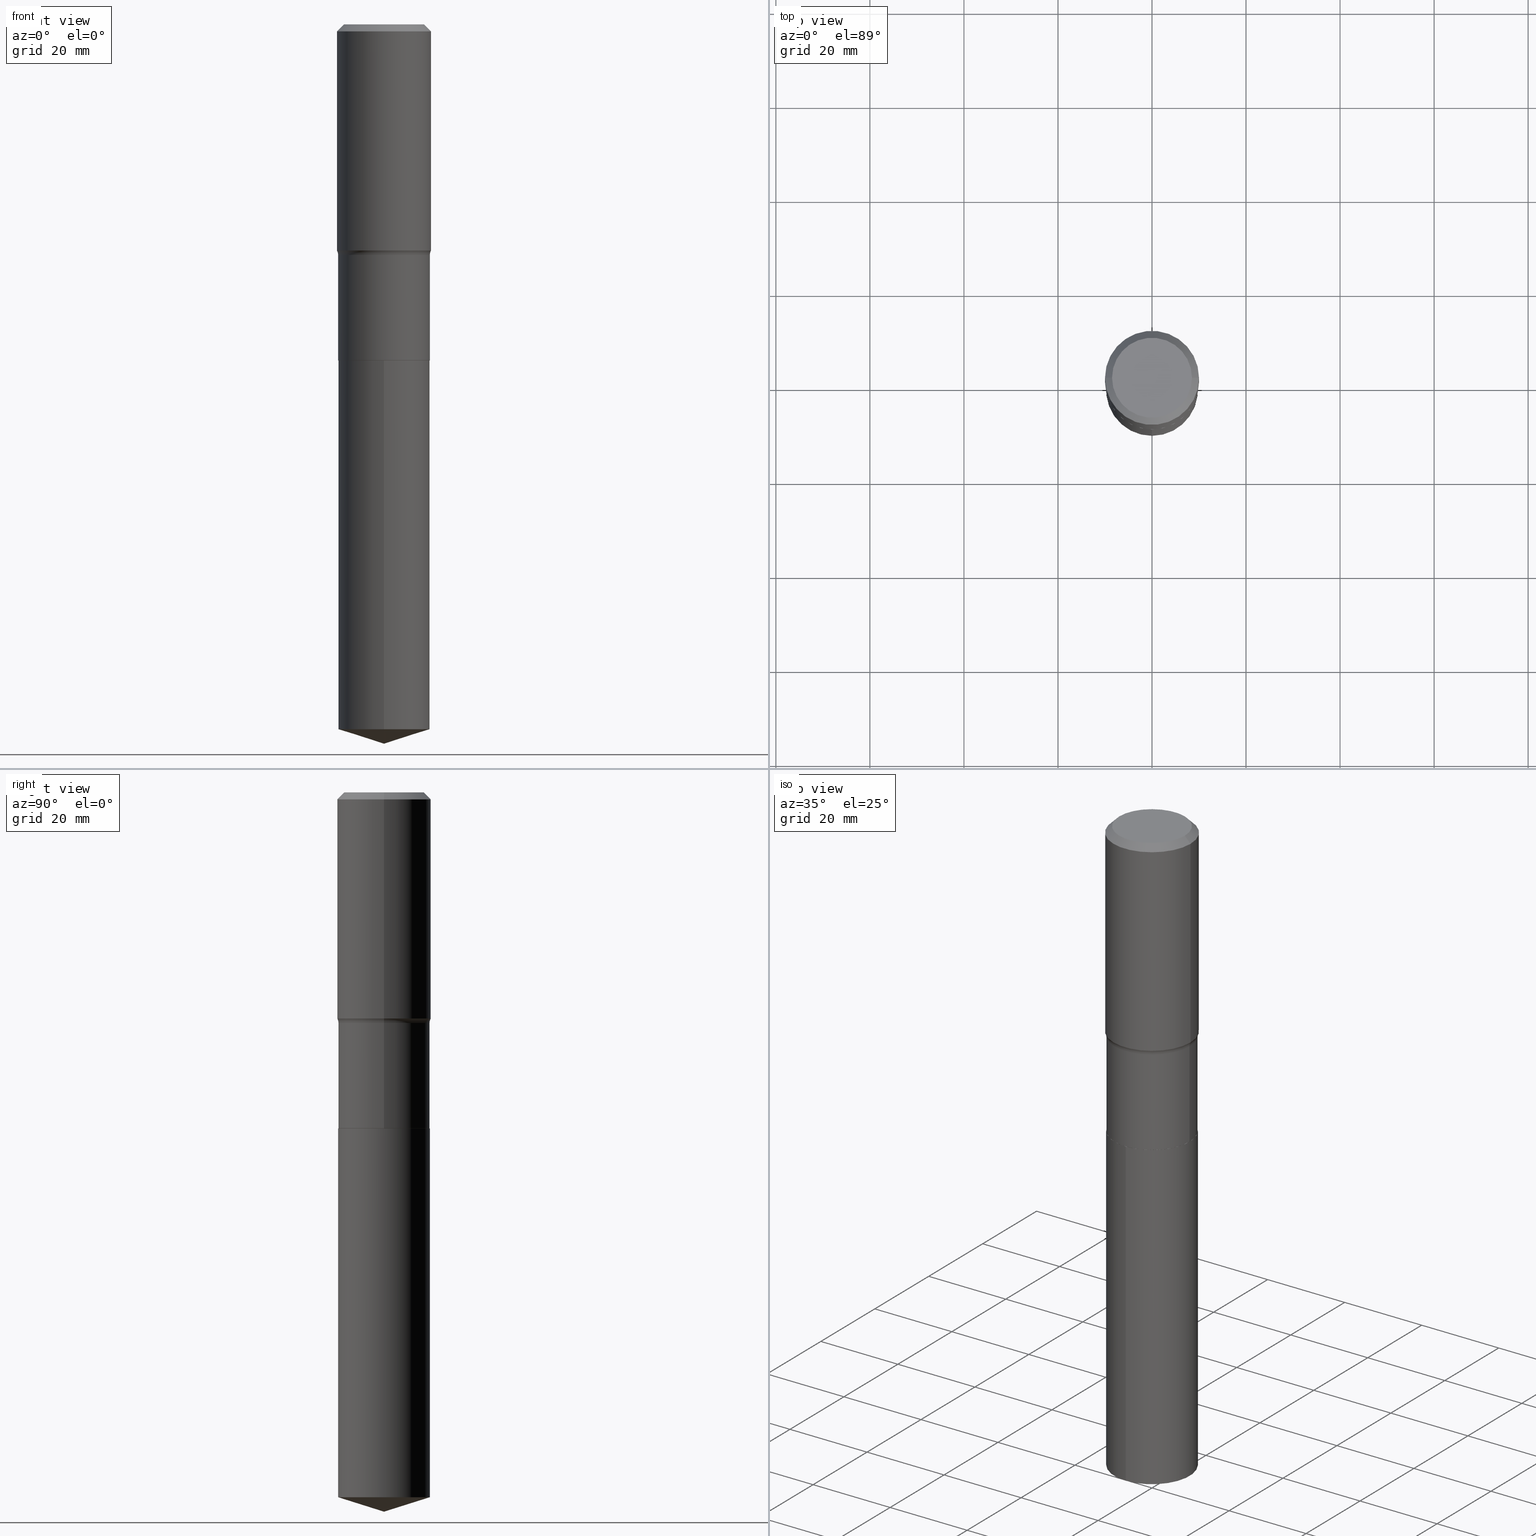
[diagram: canonical four-view strip — front | top / right | iso, engineering-drawing reading convention]
A machine part, canonical four-view strip (front | top / right | iso — engineering-drawing reading convention). The complete STEP part file that produces these views, byte-faithful:
ISO-10303-21;
HEADER;
FILE_DESCRIPTION (( 'STEP AP203' ),
    '1' );
FILE_NAME ('64211.STEP',
    '2024-04-19T15:38:18',
    ( '' ),
    ( '' ),
    'SwSTEP 2.0',
    'SolidWorks 2023',
    '' );
FILE_SCHEMA (( 'CONFIG_CONTROL_DESIGN' ));
ENDSEC;

DATA;
#1 = FACE_OUTER_BOUND ( 'NONE', #299, .T. ) ;
#2 = CALENDAR_DATE ( 2024, 19, 4 ) ;
#3 = CARTESIAN_POINT ( 'NONE',  ( 1.444171603492641897E-30, -2.061894304653833219E-16, -0.05905500000000039190 ) ) ;
#4 = DATE_TIME_ROLE ( 'creation_date' ) ;
#5 = CARTESIAN_POINT ( 'NONE',  ( 0.3838500000000000800, -1.250683530387001944E-14, -2.814399999999999569 ) ) ;
#6 = DATE_AND_TIME ( #342, #471 ) ;
#7 = CC_DESIGN_PERSON_AND_ORGANIZATION_ASSIGNMENT ( #189, #452, ( #318 ) ) ;
#8 = AXIS2_PLACEMENT_3D ( 'NONE', #335, #384, #424 ) ;
#9 = CONICAL_SURFACE ( 'NONE', #96, 0.3833500000000000241, 0.7853981633967653808 ) ;
#10 = ORIENTED_EDGE ( 'NONE', *, *, #165, .F. ) ;
#11 = CARTESIAN_POINT ( 'NONE',  ( 4.724645733549684143E-29, -6.745541946644958002E-15, -1.931999999999999940 ) ) ;
#12 = ADVANCED_FACE ( 'NONE', ( #277 ), #430, .T. ) ;
#13 = CARTESIAN_POINT ( 'NONE',  ( 0.4618499999999998717, -9.970623259334358080E-15, -1.931999999999999940 ) ) ;
#14 = APPROVAL_STATUS ( 'not_yet_approved' ) ;
#15 = ORIENTED_EDGE ( 'NONE', *, *, #304, .F. ) ;
#16 = CARTESIAN_POINT ( 'NONE',  ( 4.724645733549684143E-29, -6.745541946644958002E-15, -1.931999999999999940 ) ) ;
#17 = EDGE_CURVE ( 'NONE', #266, #156, #437, .T. ) ;
#18 = ORIENTED_EDGE ( 'NONE', *, *, #490, .T. ) ;
#19 = DIRECTION ( 'NONE',  ( 1.000000000000000000, -6.982962677686265922E-15, 4.876176775795935793E-29 ) ) ;
#20 = COORDINATED_UNIVERSAL_TIME_OFFSET ( 5, 0, .BEHIND. ) ;
#21 = ORIENTED_EDGE ( 'NONE', *, *, #447, .T. ) ;
#22 = PRODUCT ( '64211', '64211', '', ( #80 ) ) ;
#23 = EDGE_LOOP ( 'NONE', ( #460, #24 ) ) ;
#24 = ORIENTED_EDGE ( 'NONE', *, *, #274, .F. ) ;
#25 = CARTESIAN_POINT ( 'NONE',  ( 0.3937000000000000499, -2.907167492188035412E-15, -0.05905500000000039190 ) ) ;
#26 = PRODUCT_DEFINITION_FORMATION_WITH_SPECIFIED_SOURCE ( 'ANY', '', #22, .NOT_KNOWN. ) ;
#27 = VECTOR ( 'NONE', #434, 39.37007874015748143 ) ;
#28 = DIRECTION ( 'NONE',  ( -2.445120379997572774E-29, 3.491980304974924025E-15, 1.000000000000000000 ) ) ;
#29 = DIRECTION ( 'NONE',  ( -2.445120379997572774E-29, 3.491980304974924025E-15, 1.000000000000000000 ) ) ;
#30 = ADVANCED_FACE ( 'NONE', ( #246 ), #210, .T. ) ;
#31 = ORIENTED_EDGE ( 'NONE', *, *, #455, .F. ) ;
#32 = CARTESIAN_POINT ( 'NONE',  ( 6.883750142530539659E-29, -9.828170820709568122E-15, -2.814899999999999736 ) ) ;
#33 = DIRECTION ( 'NONE',  ( -2.445120379997572774E-29, 3.491980304974924025E-15, 1.000000000000000000 ) ) ;
#34 = AXIS2_PLACEMENT_3D ( 'NONE', #354, #245, #174 ) ;
#35 = CARTESIAN_POINT ( 'NONE',  ( 0.000000000000000000, 0.000000000000000000, 0.000000000000000000 ) ) ;
#36 = DIRECTION ( 'NONE',  ( 1.000000000000000000, -6.982962677686266711E-15, 0.000000000000000000 ) ) ;
#37 = APPROVAL_DATE_TIME ( #492, #69 ) ;
#38 = CARTESIAN_POINT ( 'NONE',  ( 0.3937000000000002164, -9.362261389830614750E-15, -1.894058235412674485 ) ) ;
#39 = DIRECTION ( 'NONE',  ( -1.000000000000000000, 6.982962677686265922E-15, -4.876176775795935793E-29 ) ) ;
#40 = CALENDAR_DATE ( 2024, 19, 4 ) ;
#41 = APPLICATION_CONTEXT ( 'configuration controlled 3d designs of mechanical parts and assemblies' ) ;
#42 = DIRECTION ( 'NONE',  ( -2.445468806185136597E-29, 3.491481338843145583E-15, 1.000000000000000000 ) ) ;
#43 = APPROVAL_ROLE ( '' ) ;
#44 = EDGE_CURVE ( 'NONE', #351, #234, #102, .T. ) ;
#45 = AXIS2_PLACEMENT_3D ( 'NONE', #257, #216, #19 ) ;
#46 = CARTESIAN_POINT ( 'NONE',  ( 1.444171603492641897E-30, -2.061894304653833219E-16, -0.05905500000000039190 ) ) ;
#47 = APPLICATION_PROTOCOL_DEFINITION ( 'international standard', 'config_control_design', 1994, #41 ) ;
#48 = ORIENTED_EDGE ( 'NONE', *, *, #17, .T. ) ;
#49 = DIRECTION ( 'NONE',  ( 1.000000000000000000, -6.982962677686264344E-15, 4.883557194083111780E-29 ) ) ;
#50 = VERTEX_POINT ( 'NONE', #391 ) ;
#51 = DIRECTION ( 'NONE',  ( -2.445468806185136597E-29, 3.491481338843145583E-15, 1.000000000000000000 ) ) ;
#52 = CIRCLE ( 'NONE', #481, 0.3838499999999998580 ) ;
#53 = TOROIDAL_SURFACE ( 'NONE', #173, 0.4618499999999998717, 0.07799999999999999989 ) ;
#54 = DIRECTION ( 'NONE',  ( -2.445468806185136597E-29, 3.491481338843145583E-15, 1.000000000000000000 ) ) ;
#55 = VERTEX_POINT ( 'NONE', #357 ) ;
#56 = APPROVAL_ROLE ( '' ) ;
#57 = ORIENTED_EDGE ( 'NONE', *, *, #58, .T. ) ;
#58 = EDGE_CURVE ( 'NONE', #266, #314, #263, .T. ) ;
#59 = ORIENTED_EDGE ( 'NONE', *, *, #286, .F. ) ;
#60 = CLOSED_SHELL ( 'NONE', ( #88, #73, #393, #110, #123 ) ) ;
#61 = ORIENTED_EDGE ( 'NONE', *, *, #470, .F. ) ;
#62 = ORIENTED_EDGE ( 'NONE', *, *, #91, .T. ) ;
#63 = DIRECTION ( 'NONE',  ( 2.445468806185136597E-29, -3.491481338843145583E-15, -1.000000000000000000 ) ) ;
#64 = EDGE_CURVE ( 'NONE', #468, #281, #317, .T. ) ;
#65 = CYLINDRICAL_SURFACE ( 'NONE', #111, 0.3838499999999999690 ) ;
#66 = APPLICATION_CONTEXT ( 'configuration controlled 3d designs of mechanical parts and assemblies' ) ;
#67 = FACE_OUTER_BOUND ( 'NONE', #23, .T. ) ;
#68 = AXIS2_PLACEMENT_3D ( 'NONE', #219, #238, #340 ) ;
#69 = APPROVAL ( #83, 'UNSPECIFIED' ) ;
#70 = LINE ( 'NONE', #217, #387 ) ;
#71 = DATE_TIME_ROLE ( 'classification_date' ) ;
#72 = DIRECTION ( 'NONE',  ( -6.982962677686265133E-15, -1.000000000000000000, 3.500519750498655128E-15 ) ) ;
#73 = ADVANCED_FACE ( 'NONE', ( #106 ), #184, .T. ) ;
#74 = DIRECTION ( 'NONE',  ( 1.000000000000000000, -6.982962677686268288E-15, 0.000000000000000000 ) ) ;
#75 = APPROVAL_PERSON_ORGANIZATION ( #459, #188, #43 ) ;
#76 = CARTESIAN_POINT ( 'NONE',  ( -0.3937000000000002164, -3.815662232938014381E-15, -1.894058235412674485 ) ) ;
#77 = CC_DESIGN_APPROVAL ( #428, ( #120 ) ) ;
#78 = DIRECTION ( 'NONE',  ( -2.445468806185136597E-29, 3.491481338843145583E-15, 1.000000000000000000 ) ) ;
#79 =( LENGTH_UNIT ( ) NAMED_UNIT ( * ) SI_UNIT ( $, .METRE. ) );
#80 = MECHANICAL_CONTEXT ( 'NONE', #41, 'mechanical' ) ;
#81 = CARTESIAN_POINT ( 'NONE',  ( 6.883750142530541901E-29, -9.828170820709569700E-15, -2.814900000000000180 ) ) ;
#82 = VECTOR ( 'NONE', #239, 39.37007874015748143 ) ;
#83 = APPROVAL_STATUS ( 'not_yet_approved' ) ;
#84 = EDGE_CURVE ( 'NONE', #324, #50, #361, .T. ) ;
#85 = CARTESIAN_POINT ( 'NONE',  ( 0.000000000000000000, 0.000000000000000000, 0.000000000000000000 ) ) ;
#86 = CC_DESIGN_SECURITY_CLASSIFICATION ( #120, ( #26 ) ) ;
#87 = VECTOR ( 'NONE', #101, 39.37007874015748143 ) ;
#88 = ADVANCED_FACE ( 'NONE', ( #104 ), #65, .T. ) ;
#89 = DIRECTION ( 'NONE',  ( 1.000000000000000000, -6.982962677686267499E-15, 4.876176775795935793E-29 ) ) ;
#90 = ORIENTED_EDGE ( 'NONE', *, *, #274, .T. ) ;
#91 = EDGE_CURVE ( 'NONE', #281, #325, #448, .T. ) ;
#92 = DIRECTION ( 'NONE',  ( 1.000000000000000000, -6.982962677686266711E-15, 0.000000000000000000 ) ) ;
#93 = CARTESIAN_POINT ( 'NONE',  ( -8.153517398383947716E-28, 1.164466515406592908E-13, 33.34647874015747959 ) ) ;
#94 = DIRECTION ( 'NONE',  ( -2.445120379997572774E-29, 3.491980304974924025E-15, 1.000000000000000000 ) ) ;
#95 = CARTESIAN_POINT ( 'NONE',  ( 0.3937000000000001054, -2.749192406205084005E-15, 1.919750796630860452E-29 ) ) ;
#96 = AXIS2_PLACEMENT_3D ( 'NONE', #187, #385, #159 ) ;
#97 = VERTEX_POINT ( 'NONE', #76 ) ;
#98 = DIRECTION ( 'NONE',  ( 1.000000000000000000, -6.982962677686267499E-15, 4.876152824003125403E-29 ) ) ;
#99 = AXIS2_PLACEMENT_3D ( 'NONE', #377, #151, #293 ) ;
#100 = AXIS2_PLACEMENT_3D ( 'NONE', #240, #282, #273 ) ;
#101 = DIRECTION ( 'NONE',  ( -0.7071067811865450192, 2.468850131082230634E-15, -0.7071067811865500152 ) ) ;
#102 = LINE ( 'NONE', #252, #426 ) ;
#103 = EDGE_LOOP ( 'NONE', ( #182, #15, #57, #205 ) ) ;
#104 = FACE_OUTER_BOUND ( 'NONE', #401, .T. ) ;
#105 = CC_DESIGN_PERSON_AND_ORGANIZATION_ASSIGNMENT ( #364, #370, ( #120 ) ) ;
#106 = FACE_OUTER_BOUND ( 'NONE', #475, .T. ) ;
#107 = EDGE_LOOP ( 'NONE', ( #489, #62, #143, #322 ) ) ;
#108 = ORIENTED_EDGE ( 'NONE', *, *, #360, .T. ) ;
#109 = APPROVAL_PERSON_ORGANIZATION ( #376, #428, #56 ) ;
#110 = ADVANCED_FACE ( 'NONE', ( #213 ), #368, .T. ) ;
#111 = AXIS2_PLACEMENT_3D ( 'NONE', #371, #29, #402 ) ;
#112 = CARTESIAN_POINT ( 'NONE',  ( 6.883750142530539659E-29, -9.828170820709568122E-15, -2.814899999999999736 ) ) ;
#113 = CC_DESIGN_DATE_AND_TIME_ASSIGNMENT ( #126, #71, ( #120 ) ) ;
#114 = CARTESIAN_POINT ( 'NONE',  ( 0.3937000000000000499, -2.955381836670466588E-15, -0.05905500000000039190 ) ) ;
#115 = EDGE_LOOP ( 'NONE', ( #483, #321 ) ) ;
#116 = DIRECTION ( 'NONE',  ( -2.445468806185136597E-29, 3.491481338843145583E-15, 1.000000000000000000 ) ) ;
#117 = DIMENSIONAL_EXPONENTS ( 1.000000000000000000, 0.000000000000000000, 0.000000000000000000, 0.000000000000000000, 0.000000000000000000, 0.000000000000000000, 0.000000000000000000 ) ;
#118 = EDGE_LOOP ( 'NONE', ( #442, #392, #61, #166 ) ) ;
#119 = AXIS2_PLACEMENT_3D ( 'NONE', #13, #485, #180 ) ;
#120 = SECURITY_CLASSIFICATION ( '', '', #292 ) ;
#121 = ORIENTED_EDGE ( 'NONE', *, *, #360, .F. ) ;
#122 = LENGTH_MEASURE_WITH_UNIT ( LENGTH_MEASURE( 0.02539999999999999897 ), #79 );
#123 = ADVANCED_FACE ( 'NONE', ( #451 ), #255, .F. ) ;
#124 =( CONVERSION_BASED_UNIT ( 'INCH', #122 ) LENGTH_UNIT ( ) NAMED_UNIT ( #117 ) );
#125 = ORIENTED_EDGE ( 'NONE', *, *, #470, .T. ) ;
#126 = DATE_AND_TIME ( #2, #284 ) ;
#127 = PERSON_AND_ORGANIZATION ( #294, #441 ) ;
#128 = AXIS2_PLACEMENT_3D ( 'NONE', #85, #466, #89 ) ;
#129 = CARTESIAN_POINT ( 'NONE',  ( 0.3346450000000000258, -2.601499422326145188E-15, 4.096137381465387809E-18 ) ) ;
#130 = PERSON_AND_ORGANIZATION_ROLE ( 'design_supplier' ) ;
#131 = CARTESIAN_POINT ( 'NONE',  ( 4.631860331799759695E-29, -6.613068983625529956E-15, -1.894058235412674485 ) ) ;
#132 = ORIENTED_EDGE ( 'NONE', *, *, #269, .F. ) ;
#133 = ORIENTED_EDGE ( 'NONE', *, *, #165, .T. ) ;
#134 = CARTESIAN_POINT ( 'NONE',  ( 1.443348124547393256E-28, -2.061026258805278371E-14, -5.902572559888804804 ) ) ;
#135 = CONICAL_SURFACE ( 'NONE', #454, 0.3833500000000000241, 0.7853981633967653808 ) ;
#136 = CC_DESIGN_PERSON_AND_ORGANIZATION_ASSIGNMENT ( #127, #388, ( #22 ) ) ;
#137 = AXIS2_PLACEMENT_3D ( 'NONE', #198, #160, #225 ) ;
#138 = ADVANCED_BREP_SHAPE_REPRESENTATION ( '64211', ( #418, #247, #68 ), #355 ) ;
#139 = ORIENTED_EDGE ( 'NONE', *, *, #348, .F. ) ;
#140 = CARTESIAN_POINT ( 'NONE',  ( 2.727418291215289099E-15, 0.3838499999999901435, -2.814900000000000624 ) ) ;
#141 = PERSON_AND_ORGANIZATION_ROLE ( 'creator' ) ;
#142 = VERTEX_POINT ( 'NONE', #411 ) ;
#143 = ORIENTED_EDGE ( 'NONE', *, *, #336, .F. ) ;
#144 = ORIENTED_EDGE ( 'NONE', *, *, #44, .T. ) ;
#145 = AXIS2_PLACEMENT_3D ( 'NONE', #46, #297, #261 ) ;
#146 = DIRECTION ( 'NONE',  ( -2.445468806185136597E-29, 3.491481338843145583E-15, 1.000000000000000000 ) ) ;
#147 = CIRCLE ( 'NONE', #353, 0.07799999999999995826 ) ;
#148 = LOCAL_TIME ( 11, 38, 18.00000000000000000, #164 ) ;
#149 = ORIENTED_EDGE ( 'NONE', *, *, #91, .F. ) ;
#150 = ORIENTED_EDGE ( 'NONE', *, *, #84, .F. ) ;
#151 = DIRECTION ( 'NONE',  ( -2.445468806185136597E-29, 3.491481338843145583E-15, 1.000000000000000000 ) ) ;
#152 = EDGE_CURVE ( 'NONE', #97, #242, #70, .T. ) ;
#153 = CARTESIAN_POINT ( 'NONE',  ( -0.4618499999999998717, -3.463900321536935811E-15, -1.931999999999999940 ) ) ;
#154 = DIRECTION ( 'NONE',  ( 2.438088387897960049E-29, -3.491481338843145188E-15, -1.000000000000000000 ) ) ;
#155 = CARTESIAN_POINT ( 'NONE',  ( -8.153517398383947716E-28, 1.164466515406592908E-13, 33.34647874015747959 ) ) ;
#156 = VERTEX_POINT ( 'NONE', #114 ) ;
#157 = DIRECTION ( 'NONE',  ( 0.7071067811860646257, -2.468850131077198884E-15, 0.7071067811870304087 ) ) ;
#158 = LOCAL_TIME ( 11, 38, 18.00000000000000000, #193 ) ;
#159 = DIRECTION ( 'NONE',  ( 1.000000000000000000, -6.982962677686268288E-15, 0.000000000000000000 ) ) ;
#160 = DIRECTION ( 'NONE',  ( -2.445120379997572774E-29, 3.491980304974924025E-15, 1.000000000000000000 ) ) ;
#161 = AXIS2_PLACEMENT_3D ( 'NONE', #155, #33, #72 ) ;
#162 = DESIGN_CONTEXT ( 'detailed design', #66, 'design' ) ;
#163 = CARTESIAN_POINT ( 'NONE',  ( 1.444171603492641897E-30, -2.061894304653833219E-16, -0.05905500000000039190 ) ) ;
#164 = COORDINATED_UNIVERSAL_TIME_OFFSET ( 5, 0, .BEHIND. ) ;
#165 = EDGE_CURVE ( 'NONE', #142, #344, #183, .T. ) ;
#166 = ORIENTED_EDGE ( 'NONE', *, *, #17, .F. ) ;
#167 = CONICAL_SURFACE ( 'NONE', #177, 124.8659371009168240, 1.265363707695895679 ) ;
#168 = CALENDAR_DATE ( 2024, 19, 4 ) ;
#169 = CIRCLE ( 'NONE', #137, 0.3838499999999999690 ) ;
#170 = AXIS2_PLACEMENT_3D ( 'NONE', #461, #341, #423 ) ;
#171 = ORIENTED_EDGE ( 'NONE', *, *, #211, .F. ) ;
#172 = EDGE_LOOP ( 'NONE', ( #316, #358, #484, #469 ) ) ;
#173 = AXIS2_PLACEMENT_3D ( 'NONE', #11, #472, #49 ) ;
#174 = DIRECTION ( 'NONE',  ( 1.000000000000000000, -6.982962677686266711E-15, 4.876176775795935793E-29 ) ) ;
#175 = CARTESIAN_POINT ( 'NONE',  ( -0.3833500000000000241, -7.101656015999113082E-15, -2.814900000000000180 ) ) ;
#176 = ORIENTED_EDGE ( 'NONE', *, *, #269, .T. ) ;
#177 = AXIS2_PLACEMENT_3D ( 'NONE', #93, #366, #397 ) ;
#178 = AXIS2_PLACEMENT_3D ( 'NONE', #433, #51, #92 ) ;
#179 = DIRECTION ( 'NONE',  ( -6.982962677686266711E-15, -1.000000000000000000, 2.846787019579797858E-15 ) ) ;
#180 = DIRECTION ( 'NONE',  ( 1.000000000000000000, -6.982962677686261977E-15, 0.000000000000000000 ) ) ;
#181 = EDGE_CURVE ( 'NONE', #97, #325, #147, .T. ) ;
#182 = ORIENTED_EDGE ( 'NONE', *, *, #181, .F. ) ;
#183 = LINE ( 'NONE', #334, #398 ) ;
#184 = CONICAL_SURFACE ( 'NONE', #161, 124.8659371009168240, 1.265363707695895679 ) ;
#185 = DIRECTION ( 'NONE',  ( 2.445120379997572494E-29, -3.491980304974924025E-15, -1.000000000000000000 ) ) ;
#186 = FACE_OUTER_BOUND ( 'NONE', #103, .T. ) ;
#187 = CARTESIAN_POINT ( 'NONE',  ( 6.883750142530541901E-29, -9.828170820709569700E-15, -2.814900000000000180 ) ) ;
#188 = APPROVAL ( #231, 'UNSPECIFIED' ) ;
#189 = PERSON_AND_ORGANIZATION ( #294, #441 ) ;
#190 = DIRECTION ( 'NONE',  ( -2.445468806185136597E-29, 3.491481338843145583E-15, 1.000000000000000000 ) ) ;
#191 = CIRCLE ( 'NONE', #256, 0.3838499999999999690 ) ;
#192 = DIRECTION ( 'NONE',  ( -2.445468806185136877E-29, 3.491481338843145188E-15, 1.000000000000000000 ) ) ;
#193 = COORDINATED_UNIVERSAL_TIME_OFFSET ( 5, 0, .BEHIND. ) ;
#194 = TOROIDAL_SURFACE ( 'NONE', #328, 0.4618499999999998717, 0.07799999999999999989 ) ;
#195 = EDGE_CURVE ( 'NONE', #234, #467, #363, .T. ) ;
#196 = FACE_OUTER_BOUND ( 'NONE', #288, .T. ) ;
#197 = CC_DESIGN_PERSON_AND_ORGANIZATION_ASSIGNMENT ( #204, #141, ( #26 ) ) ;
#198 = CARTESIAN_POINT ( 'NONE',  ( 1.443348124547393256E-28, -2.061026258805278371E-14, -5.902572559888804804 ) ) ;
#199 = CIRCLE ( 'NONE', #329, 0.3937000000000000499 ) ;
#200 = AXIS2_PLACEMENT_3D ( 'NONE', #308, #116, #262 ) ;
#201 = DIRECTION ( 'NONE',  ( 1.000000000000000000, -6.982962677686269866E-15, 0.000000000000000000 ) ) ;
#202 = PERSON_AND_ORGANIZATION ( #294, #441 ) ;
#203 = UNCERTAINTY_MEASURE_WITH_UNIT (LENGTH_MEASURE( 1.000000000000000082E-05 ), #124, 'distance_accuracy_value', 'NONE');
#204 = PERSON_AND_ORGANIZATION ( #294, #441 ) ;
#205 = ORIENTED_EDGE ( 'NONE', *, *, #336, .T. ) ;
#206 = CYLINDRICAL_SURFACE ( 'NONE', #34, 0.3937000000000001054 ) ;
#207 = AXIS2_PLACEMENT_3D ( 'NONE', #112, #185, #260 ) ;
#208 = LINE ( 'NONE', #446, #275 ) ;
#209 = CARTESIAN_POINT ( 'NONE',  ( -0.3833500000000000241, -7.104305243173225861E-15, -2.814900000000000180 ) ) ;
#210 = CYLINDRICAL_SURFACE ( 'NONE', #100, 0.3937000000000001054 ) ;
#211 = EDGE_CURVE ( 'NONE', #50, #324, #416, .T. ) ;
#212 = CARTESIAN_POINT ( 'NONE',  ( -2.680410223829730037E-15, -0.3838500000000207302, -5.902572559888803916 ) ) ;
#213 = FACE_OUTER_BOUND ( 'NONE', #271, .T. ) ;
#214 = CC_DESIGN_PERSON_AND_ORGANIZATION_ASSIGNMENT ( #202, #130, ( #26 ) ) ;
#215 = DIRECTION ( 'NONE',  ( 1.000000000000000000, -6.982962677686267499E-15, 4.876152824003125403E-29 ) ) ;
#216 = DIRECTION ( 'NONE',  ( -2.438088387897960049E-29, 3.491481338843145188E-15, 1.000000000000000000 ) ) ;
#217 = CARTESIAN_POINT ( 'NONE',  ( -0.3937000000000001054, 2.797406750687515181E-15, -1.936584745033357016E-29 ) ) ;
#218 = DIRECTION ( 'NONE',  ( -2.445468806185136597E-29, 3.491481338843145583E-15, 1.000000000000000000 ) ) ;
#219 = CARTESIAN_POINT ( 'NONE',  ( 0.000000000000000000, 0.000000000000000000, 0.000000000000000000 ) ) ;
#220 = CONICAL_SURFACE ( 'NONE', #145, 0.3937000000000000499, 0.7853981633974447263 ) ;
#221 = ORIENTED_EDGE ( 'NONE', *, *, #415, .F. ) ;
#222 = FACE_OUTER_BOUND ( 'NONE', #396, .T. ) ;
#223 = CIRCLE ( 'NONE', #8, 0.3838499999999999690 ) ;
#224 = CC_DESIGN_APPROVAL ( #188, ( #26 ) ) ;
#225 = DIRECTION ( 'NONE',  ( -6.982962677686266711E-15, -1.000000000000000000, 2.846787019579797858E-15 ) ) ;
#226 = COORDINATED_UNIVERSAL_TIME_OFFSET ( 5, 0, .BEHIND. ) ;
#227 = ORIENTED_EDGE ( 'NONE', *, *, #352, .T. ) ;
#228 = PLANE ( 'NONE',  #350 ) ;
#229 = CARTESIAN_POINT ( 'NONE',  ( 0.3838499999999999135, -2.680410223829873215E-15, 1.871720455389269636E-29 ) ) ;
#230 = DIRECTION ( 'NONE',  ( -2.445120379997572774E-29, 3.491980304974924025E-15, 1.000000000000000000 ) ) ;
#231 = APPROVAL_STATUS ( 'not_yet_approved' ) ;
#232 = DIRECTION ( 'NONE',  ( 1.000000000000000000, -6.982962677686268288E-15, 0.000000000000000000 ) ) ;
#233 = AXIS2_PLACEMENT_3D ( 'NONE', #251, #63, #330 ) ;
#234 = VERTEX_POINT ( 'NONE', #212 ) ;
#235 = ORIENTED_EDGE ( 'NONE', *, *, #64, .F. ) ;
#236 = FACE_OUTER_BOUND ( 'NONE', #172, .T. ) ;
#237 = ORIENTED_EDGE ( 'NONE', *, *, #195, .F. ) ;
#238 = DIRECTION ( 'NONE',  ( 0.000000000000000000, 0.000000000000000000, 1.000000000000000000 ) ) ;
#239 = DIRECTION ( 'NONE',  ( -0.7071067811860646257, 7.493145998868609200E-15, 0.7071067811870304087 ) ) ;
#240 = CARTESIAN_POINT ( 'NONE',  ( 0.000000000000000000, 0.000000000000000000, 0.000000000000000000 ) ) ;
#241 = ADVANCED_FACE ( 'NONE', ( #323 ), #449, .T. ) ;
#242 = VERTEX_POINT ( 'NONE', #404 ) ;
#243 = EDGE_LOOP ( 'NONE', ( #356, #362, #235, #31 ) ) ;
#244 = ORIENTED_EDGE ( 'NONE', *, *, #195, .T. ) ;
#245 = DIRECTION ( 'NONE',  ( -2.445468806185136597E-29, 3.491481338843145583E-15, 1.000000000000000000 ) ) ;
#246 = FACE_OUTER_BOUND ( 'NONE', #408, .T. ) ;
#247 = MANIFOLD_SOLID_BREP ( 'Body-Move/Copy2[2]', #310 ) ;
#248 = CC_DESIGN_DATE_AND_TIME_ASSIGNMENT ( #6, #4, ( #318 ) ) ;
#249 = CIRCLE ( 'NONE', #291, 0.3838499999999999690 ) ;
#250 = EDGE_LOOP ( 'NONE', ( #150, #438, #125, #139 ) ) ;
#251 = CARTESIAN_POINT ( 'NONE',  ( 1.444171603492641897E-30, -2.061894304653833219E-16, -0.05905500000000039190 ) ) ;
#252 = CARTESIAN_POINT ( 'NONE',  ( 1.472842712095337783E-28, -2.103429256504695221E-14, -6.023600000000000065 ) ) ;
#253 = EDGE_LOOP ( 'NONE', ( #431, #171, #445, #18 ) ) ;
#254 = ORIENTED_EDGE ( 'NONE', *, *, #478, .T. ) ;
#255 = PLANE ( 'NONE',  #207 ) ;
#256 = AXIS2_PLACEMENT_3D ( 'NONE', #346, #230, #270 ) ;
#257 = CARTESIAN_POINT ( 'NONE',  ( 4.082229992490629720E-29, -1.384010712819125920E-14, -2.814899999999999736 ) ) ;
#258 = AXIS2_PLACEMENT_3D ( 'NONE', #405, #373, #215 ) ;
#259 = EDGE_CURVE ( 'NONE', #55, #425, #345, .T. ) ;
#260 = DIRECTION ( 'NONE',  ( 6.982962677686265922E-15, 1.000000000000000000, -3.491980304974924025E-15 ) ) ;
#261 = DIRECTION ( 'NONE',  ( -1.000000000000000000, 6.982962677686265922E-15, 0.000000000000000000 ) ) ;
#262 = DIRECTION ( 'NONE',  ( 1.000000000000000000, -6.982962677686268288E-15, 0.000000000000000000 ) ) ;
#263 = CIRCLE ( 'NONE', #119, 0.07799999999999995826 ) ;
#264 = LINE ( 'NONE', #229, #482 ) ;
#265 = CIRCLE ( 'NONE', #170, 0.3838500000000000800 ) ;
#266 = VERTEX_POINT ( 'NONE', #38 ) ;
#267 = LINE ( 'NONE', #298, #378 ) ;
#268 = SHAPE_DEFINITION_REPRESENTATION ( #327, #138 ) ;
#269 = EDGE_CURVE ( 'NONE', #234, #142, #169, .T. ) ;
#270 = DIRECTION ( 'NONE',  ( -6.982962677686266711E-15, -1.000000000000000000, 2.846787019579797858E-15 ) ) ;
#271 = EDGE_LOOP ( 'NONE', ( #10, #479, #244, #121 ) ) ;
#272 = CIRCLE ( 'NONE', #407, 0.3937000000000002164 ) ;
#273 = DIRECTION ( 'NONE',  ( 1.000000000000000000, -6.982962677686266711E-15, 4.876176775795935793E-29 ) ) ;
#274 = EDGE_CURVE ( 'NONE', #425, #55, #487, .T. ) ;
#275 = VECTOR ( 'NONE', #444, 39.37007874015748854 ) ;
#276 = CARTESIAN_POINT ( 'NONE',  ( -0.3838499999999998580, -5.558565222127407178E-15, -1.931999999999999940 ) ) ;
#277 = FACE_OUTER_BOUND ( 'NONE', #107, .T. ) ;
#278 = DIRECTION ( 'NONE',  ( 1.000000000000000000, -6.982962677686264344E-15, 4.883557194083111780E-29 ) ) ;
#279 = EDGE_CURVE ( 'NONE', #325, #314, #52, .T. ) ;
#280 = LINE ( 'NONE', #436, #87 ) ;
#281 = VERTEX_POINT ( 'NONE', #491 ) ;
#282 = DIRECTION ( 'NONE',  ( -2.445468806185136597E-29, 3.491481338843145583E-15, 1.000000000000000000 ) ) ;
#283 = AXIS2_PLACEMENT_3D ( 'NONE', #32, #28, #179 ) ;
#284 = LOCAL_TIME ( 11, 38, 18.00000000000000000, #20 ) ;
#285 = ORIENTED_EDGE ( 'NONE', *, *, #44, .F. ) ;
#286 = EDGE_CURVE ( 'NONE', #425, #281, #474, .T. ) ;
#287 = LINE ( 'NONE', #25, #307 ) ;
#288 = EDGE_LOOP ( 'NONE', ( #59, #90, #450, #420 ) ) ;
#289 = CARTESIAN_POINT ( 'NONE',  ( 6.883750142530541901E-29, -9.828170820709569700E-15, -2.814900000000000180 ) ) ;
#290 = DIRECTION ( 'NONE',  ( -2.445468806185136877E-29, 3.491481338843145188E-15, 1.000000000000000000 ) ) ;
#291 = AXIS2_PLACEMENT_3D ( 'NONE', #134, #94, #320 ) ;
#292 = SECURITY_CLASSIFICATION_LEVEL ( 'unclassified' ) ;
#293 = DIRECTION ( 'NONE',  ( 1.000000000000000000, -6.982962677686265922E-15, 0.000000000000000000 ) ) ;
#294 = PERSON ( 'UNSPECIFIED', 'UNSPECIFIED', 'UNSPECIFIED', ('UNSPECIFIED'), ('UNSPECIFIED'), ('UNSPECIFIED') ) ;
#295 = EDGE_CURVE ( 'NONE', #142, #234, #249, .T. ) ;
#296 = DIRECTION ( 'NONE',  ( 7.105427357601001859E-15, 1.000000000000000000, -3.491481338843145583E-15 ) ) ;
#297 = DIRECTION ( 'NONE',  ( 2.445468806185136597E-29, -3.491481338843145583E-15, -1.000000000000000000 ) ) ;
#298 = CARTESIAN_POINT ( 'NONE',  ( 0.3833500000000000241, -1.250508956320060030E-14, -2.814900000000000180 ) ) ;
#299 = EDGE_LOOP ( 'NONE', ( #221, #144, #476 ) ) ;
#300 = CIRCLE ( 'NONE', #178, 0.3838499999999998580 ) ;
#301 = DIRECTION ( 'NONE',  ( 1.000000000000000000, -6.982962677686265922E-15, 0.000000000000000000 ) ) ;
#302 = CARTESIAN_POINT ( 'NONE',  ( 4.724645733549684143E-29, -6.745541946644958002E-15, -1.931999999999999940 ) ) ;
#303 = APPROVAL_ROLE ( '' ) ;
#304 = EDGE_CURVE ( 'NONE', #266, #97, #272, .T. ) ;
#305 = APPROVAL_DATE_TIME ( #311, #428 ) ;
#306 = FACE_OUTER_BOUND ( 'NONE', #250, .T. ) ;
#307 = VECTOR ( 'NONE', #443, 39.37007874015748143 ) ;
#308 = CARTESIAN_POINT ( 'NONE',  ( 6.883750142530541901E-29, -9.828170820709569700E-15, -2.814900000000000180 ) ) ;
#309 = DATE_AND_TIME ( #347, #158 ) ;
#310 = CLOSED_SHELL ( 'NONE', ( #432, #374, #343, #331, #12, #383, #389, #30, #241, #386, #422, #367 ) ) ;
#311 = DATE_AND_TIME ( #168, #457 ) ;
#312 = ORIENTED_EDGE ( 'NONE', *, *, #415, .T. ) ;
#313 = CARTESIAN_POINT ( 'NONE',  ( 0.3838499999999998580, -9.425952170474830034E-15, -1.931999999999999940 ) ) ;
#314 = VERTEX_POINT ( 'NONE', #313 ) ;
#315 = DIRECTION ( 'NONE',  ( -2.445468806185136597E-29, 3.491481338843145583E-15, 1.000000000000000000 ) ) ;
#316 = ORIENTED_EDGE ( 'NONE', *, *, #352, .F. ) ;
#317 = CIRCLE ( 'NONE', #99, 0.3838500000000000800 ) ;
#318 = PRODUCT_DEFINITION ( 'UNKNOWN', '', #26, #162 ) ;
#319 = CARTESIAN_POINT ( 'NONE',  ( -1.001697619218024707E-46, 1.430158722866394097E-32, 4.096137381448120692E-18 ) ) ;
#320 = DIRECTION ( 'NONE',  ( -6.982962677686266711E-15, -1.000000000000000000, 2.846787019579797858E-15 ) ) ;
#321 = ORIENTED_EDGE ( 'NONE', *, *, #84, .T. ) ;
#322 = ORIENTED_EDGE ( 'NONE', *, *, #478, .F. ) ;
#323 = FACE_OUTER_BOUND ( 'NONE', #253, .T. ) ;
#324 = VERTEX_POINT ( 'NONE', #129 ) ;
#325 = VERTEX_POINT ( 'NONE', #276 ) ;
#326 = CARTESIAN_POINT ( 'NONE',  ( -2.680410223829804190E-15, -0.3838500000000098500, -2.814899999999998403 ) ) ;
#327 = PRODUCT_DEFINITION_SHAPE ( 'NONE', 'NONE',  #318 ) ;
#328 = AXIS2_PLACEMENT_3D ( 'NONE', #16, #315, #278 ) ;
#329 = AXIS2_PLACEMENT_3D ( 'NONE', #163, #458, #419 ) ;
#330 = DIRECTION ( 'NONE',  ( -1.000000000000000000, 6.982962677686265922E-15, 0.000000000000000000 ) ) ;
#331 = ADVANCED_FACE ( 'NONE', ( #236 ), #194, .F. ) ;
#332 = DIRECTION ( 'NONE',  ( -2.445120379997572494E-29, 3.491980304974924025E-15, 1.000000000000000000 ) ) ;
#333 = PLANE ( 'NONE',  #45 ) ;
#334 = CARTESIAN_POINT ( 'NONE',  ( 2.727418291215212974E-15, 0.3838499999999901435, -2.814900000000000624 ) ) ;
#335 = CARTESIAN_POINT ( 'NONE',  ( 6.883750142530539659E-29, -9.828170820709568122E-15, -2.814899999999999736 ) ) ;
#336 = EDGE_CURVE ( 'NONE', #314, #325, #300, .T. ) ;
#337 = DIRECTION ( 'NONE',  ( -2.445468806185136877E-29, 3.491481338843145188E-15, 1.000000000000000000 ) ) ;
#338 = DIRECTION ( 'NONE',  ( 1.000000000000000000, -6.982962677686267499E-15, 4.876176775795935793E-29 ) ) ;
#339 =( NAMED_UNIT ( * ) PLANE_ANGLE_UNIT ( ) SI_UNIT ( $, .RADIAN. ) );
#340 = DIRECTION ( 'NONE',  ( 1.000000000000000000, 0.000000000000000000, 0.000000000000000000 ) ) ;
#341 = DIRECTION ( 'NONE',  ( -2.445468806185136597E-29, 3.491481338843145583E-15, 1.000000000000000000 ) ) ;
#342 = CALENDAR_DATE ( 2024, 19, 4 ) ;
#343 = ADVANCED_FACE ( 'NONE', ( #395 ), #206, .T. ) ;
#344 = VERTEX_POINT ( 'NONE', #140 ) ;
#345 = CIRCLE ( 'NONE', #473, 0.3833500000000000241 ) ;
#346 = CARTESIAN_POINT ( 'NONE',  ( 6.883750142530539659E-29, -9.828170820709568122E-15, -2.814899999999999736 ) ) ;
#347 = CALENDAR_DATE ( 2024, 19, 4 ) ;
#348 = EDGE_CURVE ( 'NONE', #50, #242, #280, .T. ) ;
#349 = COORDINATED_UNIVERSAL_TIME_OFFSET ( 5, 0, .BEHIND. ) ;
#350 = AXIS2_PLACEMENT_3D ( 'NONE', #382, #154, #39 ) ;
#351 = VERTEX_POINT ( 'NONE', #462 ) ;
#352 = EDGE_CURVE ( 'NONE', #97, #266, #369, .T. ) ;
#353 = AXIS2_PLACEMENT_3D ( 'NONE', #153, #296, #372 ) ;
#354 = CARTESIAN_POINT ( 'NONE',  ( 0.000000000000000000, 0.000000000000000000, 0.000000000000000000 ) ) ;
#355 =( GEOMETRIC_REPRESENTATION_CONTEXT ( 3 ) GLOBAL_UNCERTAINTY_ASSIGNED_CONTEXT ( ( #203 ) ) GLOBAL_UNIT_ASSIGNED_CONTEXT ( ( #124, #339, #409 ) ) REPRESENTATION_CONTEXT ( 'NONE', 'WORKASPACE' ) );
#356 = ORIENTED_EDGE ( 'NONE', *, *, #259, .T. ) ;
#357 = CARTESIAN_POINT ( 'NONE',  ( 0.3833500000000000241, -1.250508956320060030E-14, -2.814900000000000180 ) ) ;
#358 = ORIENTED_EDGE ( 'NONE', *, *, #181, .T. ) ;
#359 = ORIENTED_EDGE ( 'NONE', *, *, #490, .F. ) ;
#360 = EDGE_CURVE ( 'NONE', #344, #467, #223, .T. ) ;
#361 = CIRCLE ( 'NONE', #258, 0.3346450000000000258 ) ;
#362 = ORIENTED_EDGE ( 'NONE', *, *, #286, .T. ) ;
#363 = LINE ( 'NONE', #326, #379 ) ;
#364 = PERSON_AND_ORGANIZATION ( #294, #441 ) ;
#365 = EDGE_LOOP ( 'NONE', ( #21, #108 ) ) ;
#366 = DIRECTION ( 'NONE',  ( -2.445120379997572774E-29, 3.491980304974924025E-15, 1.000000000000000000 ) ) ;
#367 = ADVANCED_FACE ( 'NONE', ( #196 ), #135, .T. ) ;
#368 = CYLINDRICAL_SURFACE ( 'NONE', #283, 0.3838499999999999690 ) ;
#369 = CIRCLE ( 'NONE', #440, 0.3937000000000002164 ) ;
#370 = PERSON_AND_ORGANIZATION_ROLE ( 'classification_officer' ) ;
#371 = CARTESIAN_POINT ( 'NONE',  ( 6.883750142530539659E-29, -9.828170820709568122E-15, -2.814899999999999736 ) ) ;
#372 = DIRECTION ( 'NONE',  ( -1.000000000000000000, 7.105427357601001859E-15, 0.000000000000000000 ) ) ;
#373 = DIRECTION ( 'NONE',  ( -2.445468806185136597E-29, 3.491481338843145583E-15, 1.000000000000000000 ) ) ;
#374 = ADVANCED_FACE ( 'NONE', ( #306 ), #220, .T. ) ;
#375 = FACE_OUTER_BOUND ( 'NONE', #115, .T. ) ;
#376 = PERSON_AND_ORGANIZATION ( #294, #441 ) ;
#377 = CARTESIAN_POINT ( 'NONE',  ( 6.882527408127446858E-29, -9.826425080040145830E-15, -2.814399999999999569 ) ) ;
#378 = VECTOR ( 'NONE', #157, 39.37007874015748143 ) ;
#379 = VECTOR ( 'NONE', #332, 39.37007874015748143 ) ;
#380 = CYLINDRICAL_SURFACE ( 'NONE', #390, 0.3838499999999999135 ) ;
#381 = DIRECTION ( 'NONE',  ( -2.445468806185136597E-29, 3.491481338843145583E-15, 1.000000000000000000 ) ) ;
#382 = CARTESIAN_POINT ( 'NONE',  ( -5.008488096090123536E-47, 7.150793614331970485E-33, 2.048068690724060346E-18 ) ) ;
#383 = ADVANCED_FACE ( 'NONE', ( #222 ), #380, .T. ) ;
#384 = DIRECTION ( 'NONE',  ( -2.445120379997572774E-29, 3.491980304974924025E-15, 1.000000000000000000 ) ) ;
#385 = DIRECTION ( 'NONE',  ( -2.445468806185136597E-29, 3.491481338843145583E-15, 1.000000000000000000 ) ) ;
#386 = ADVANCED_FACE ( 'NONE', ( #375 ), #228, .F. ) ;
#387 = VECTOR ( 'NONE', #337, 39.37007874015748143 ) ;
#388 = PERSON_AND_ORGANIZATION_ROLE ( 'design_owner' ) ;
#389 = ADVANCED_FACE ( 'NONE', ( #186 ), #53, .F. ) ;
#390 = AXIS2_PLACEMENT_3D ( 'NONE', #35, #218, #338 ) ;
#391 = CARTESIAN_POINT ( 'NONE',  ( -0.3346450000000000258, 2.439908260507010921E-15, 4.096137381431418257E-18 ) ) ;
#392 = ORIENTED_EDGE ( 'NONE', *, *, #152, .T. ) ;
#393 = ADVANCED_FACE ( 'NONE', ( #1 ), #167, .T. ) ;
#394 = ORIENTED_EDGE ( 'NONE', *, *, #279, .F. ) ;
#395 = FACE_OUTER_BOUND ( 'NONE', #118, .T. ) ;
#396 = EDGE_LOOP ( 'NONE', ( #149, #403, #254, #394 ) ) ;
#397 = DIRECTION ( 'NONE',  ( -6.982962677686265133E-15, -1.000000000000000000, 3.500519750498655128E-15 ) ) ;
#398 = VECTOR ( 'NONE', #486, 39.37007874015748143 ) ;
#399 = DIRECTION ( 'NONE',  ( -6.659769872151639977E-15, -0.9537169507482278208, 0.3007057995042699550 ) ) ;
#400 = PRODUCT_RELATED_PRODUCT_CATEGORY ( 'detail', '', ( #22 ) ) ;
#401 = EDGE_LOOP ( 'NONE', ( #176, #133, #456, #237 ) ) ;
#402 = DIRECTION ( 'NONE',  ( -6.982962677686266711E-15, -1.000000000000000000, 2.846787019579797858E-15 ) ) ;
#403 = ORIENTED_EDGE ( 'NONE', *, *, #463, .T. ) ;
#404 = CARTESIAN_POINT ( 'NONE',  ( -0.3937000000000000499, -6.122224563579416798E-16, -0.05905500000000039190 ) ) ;
#405 = CARTESIAN_POINT ( 'NONE',  ( -1.001697619218024707E-46, 1.430158722866394097E-32, 4.096137381448120692E-18 ) ) ;
#406 = APPROVAL_PERSON_ORGANIZATION ( #488, #69, #303 ) ;
#407 = AXIS2_PLACEMENT_3D ( 'NONE', #131, #54, #201 ) ;
#408 = EDGE_LOOP ( 'NONE', ( #435, #227, #48, #359 ) ) ;
#409 =( NAMED_UNIT ( * ) SI_UNIT ( $, .STERADIAN. ) SOLID_ANGLE_UNIT ( ) );
#410 = EDGE_CURVE ( 'NONE', #324, #156, #287, .T. ) ;
#411 = CARTESIAN_POINT ( 'NONE',  ( 2.727418291215289494E-15, 0.3838499999999794854, -5.902572559888805692 ) ) ;
#412 = DIRECTION ( 'NONE',  ( -2.445468806185136597E-29, 3.491481338843145583E-15, 1.000000000000000000 ) ) ;
#413 = CARTESIAN_POINT ( 'NONE',  ( -0.3838499999999999135, 2.727418291215143949E-15, -1.888133234394345397E-29 ) ) ;
#414 = CIRCLE ( 'NONE', #439, 0.3937000000000000499 ) ;
#415 = EDGE_CURVE ( 'NONE', #351, #142, #208, .T. ) ;
#416 = CIRCLE ( 'NONE', #464, 0.3346450000000000258 ) ;
#417 = CARTESIAN_POINT ( 'NONE',  ( 4.631860331799759695E-29, -6.613068983625529956E-15, -1.894058235412674485 ) ) ;
#418 = MANIFOLD_SOLID_BREP ( 'Body-Move/Copy2[1]', #60 ) ;
#419 = DIRECTION ( 'NONE',  ( 1.000000000000000000, -6.982962677686265922E-15, 0.000000000000000000 ) ) ;
#420 = ORIENTED_EDGE ( 'NONE', *, *, #463, .F. ) ;
#421 = DIRECTION ( 'NONE',  ( 1.000000000000000000, -6.982962677686269866E-15, 0.000000000000000000 ) ) ;
#422 = ADVANCED_FACE ( 'NONE', ( #67 ), #333, .F. ) ;
#423 = DIRECTION ( 'NONE',  ( 1.000000000000000000, -6.982962677686265922E-15, 0.000000000000000000 ) ) ;
#424 = DIRECTION ( 'NONE',  ( -6.982962677686266711E-15, -1.000000000000000000, 2.846787019579797858E-15 ) ) ;
#425 = VERTEX_POINT ( 'NONE', #175 ) ;
#426 = VECTOR ( 'NONE', #399, 39.37007874015748854 ) ;
#427 = APPLICATION_PROTOCOL_DEFINITION ( 'international standard', 'config_control_design', 1994, #66 ) ;
#428 = APPROVAL ( #14, 'UNSPECIFIED' ) ;
#429 = VECTOR ( 'NONE', #290, 39.37007874015748143 ) ;
#430 = CYLINDRICAL_SURFACE ( 'NONE', #128, 0.3838499999999999135 ) ;
#431 = ORIENTED_EDGE ( 'NONE', *, *, #410, .F. ) ;
#432 = ADVANCED_FACE ( 'NONE', ( #477 ), #9, .T. ) ;
#433 = CARTESIAN_POINT ( 'NONE',  ( 4.724645733549684143E-29, -6.745541946644958002E-15, -1.931999999999999940 ) ) ;
#434 = DIRECTION ( 'NONE',  ( -2.445468806185136877E-29, 3.491481338843145188E-15, 1.000000000000000000 ) ) ;
#435 = ORIENTED_EDGE ( 'NONE', *, *, #152, .F. ) ;
#436 = CARTESIAN_POINT ( 'NONE',  ( -0.3937000000000000499, 2.543002975739700240E-15, -0.05905500000000039190 ) ) ;
#437 = LINE ( 'NONE', #95, #27 ) ;
#438 = ORIENTED_EDGE ( 'NONE', *, *, #410, .T. ) ;
#439 = AXIS2_PLACEMENT_3D ( 'NONE', #3, #42, #301 ) ;
#440 = AXIS2_PLACEMENT_3D ( 'NONE', #417, #78, #421 ) ;
#441 = ORGANIZATION ( 'UNSPECIFIED', 'UNSPECIFIED', '' ) ;
#442 = ORIENTED_EDGE ( 'NONE', *, *, #304, .T. ) ;
#443 = DIRECTION ( 'NONE',  ( 0.7071067811865450192, -7.319954787623246579E-15, -0.7071067811865500152 ) ) ;
#444 = DIRECTION ( 'NONE',  ( 6.776566513254265237E-15, 0.9537169507482300412, 0.3007057995042633491 ) ) ;
#445 = ORIENTED_EDGE ( 'NONE', *, *, #348, .T. ) ;
#446 = CARTESIAN_POINT ( 'NONE',  ( 1.473040589135539146E-28, -2.103148348551826593E-14, -6.023600000000000065 ) ) ;
#447 = EDGE_CURVE ( 'NONE', #467, #344, #191, .T. ) ;
#448 = LINE ( 'NONE', #413, #429 ) ;
#449 = CONICAL_SURFACE ( 'NONE', #233, 0.3937000000000000499, 0.7853981633974447263 ) ;
#450 = ORIENTED_EDGE ( 'NONE', *, *, #455, .T. ) ;
#451 = FACE_OUTER_BOUND ( 'NONE', #365, .T. ) ;
#452 = PERSON_AND_ORGANIZATION_ROLE ( 'creator' ) ;
#453 = CARTESIAN_POINT ( 'NONE',  ( -2.680410223829804190E-15, -0.3838500000000098500, -2.814899999999998403 ) ) ;
#454 = AXIS2_PLACEMENT_3D ( 'NONE', #81, #190, #232 ) ;
#455 = EDGE_CURVE ( 'NONE', #55, #468, #267, .T. ) ;
#456 = ORIENTED_EDGE ( 'NONE', *, *, #447, .F. ) ;
#457 = LOCAL_TIME ( 11, 38, 18.00000000000000000, #349 ) ;
#458 = DIRECTION ( 'NONE',  ( -2.445468806185136597E-29, 3.491481338843145583E-15, 1.000000000000000000 ) ) ;
#459 = PERSON_AND_ORGANIZATION ( #294, #441 ) ;
#460 = ORIENTED_EDGE ( 'NONE', *, *, #259, .F. ) ;
#461 = CARTESIAN_POINT ( 'NONE',  ( 6.882527408127446858E-29, -9.826425080040145830E-15, -2.814399999999999569 ) ) ;
#462 = CARTESIAN_POINT ( 'NONE',  ( 1.472842712095337783E-28, -2.103429256504695221E-14, -6.023600000000000065 ) ) ;
#463 = EDGE_CURVE ( 'NONE', #281, #468, #265, .T. ) ;
#464 = AXIS2_PLACEMENT_3D ( 'NONE', #319, #146, #98 ) ;
#465 = APPROVAL_DATE_TIME ( #309, #188 ) ;
#466 = DIRECTION ( 'NONE',  ( -2.445468806185136597E-29, 3.491481338843145583E-15, 1.000000000000000000 ) ) ;
#467 = VERTEX_POINT ( 'NONE', #453 ) ;
#468 = VERTEX_POINT ( 'NONE', #5 ) ;
#469 = ORIENTED_EDGE ( 'NONE', *, *, #58, .F. ) ;
#470 = EDGE_CURVE ( 'NONE', #156, #242, #414, .T. ) ;
#471 = LOCAL_TIME ( 11, 38, 18.00000000000000000, #226 ) ;
#472 = DIRECTION ( 'NONE',  ( -2.445468806185136597E-29, 3.491481338843145583E-15, 1.000000000000000000 ) ) ;
#473 = AXIS2_PLACEMENT_3D ( 'NONE', #289, #412, #74 ) ;
#474 = LINE ( 'NONE', #209, #82 ) ;
#475 = EDGE_LOOP ( 'NONE', ( #285, #312, #132 ) ) ;
#476 = ORIENTED_EDGE ( 'NONE', *, *, #295, .F. ) ;
#477 = FACE_OUTER_BOUND ( 'NONE', #243, .T. ) ;
#478 = EDGE_CURVE ( 'NONE', #468, #314, #264, .T. ) ;
#479 = ORIENTED_EDGE ( 'NONE', *, *, #295, .T. ) ;
#480 = CC_DESIGN_APPROVAL ( #69, ( #318 ) ) ;
#481 = AXIS2_PLACEMENT_3D ( 'NONE', #302, #381, #36 ) ;
#482 = VECTOR ( 'NONE', #192, 39.37007874015748143 ) ;
#483 = ORIENTED_EDGE ( 'NONE', *, *, #211, .T. ) ;
#484 = ORIENTED_EDGE ( 'NONE', *, *, #279, .T. ) ;
#485 = DIRECTION ( 'NONE',  ( -6.982962677686266711E-15, -1.000000000000000000, 3.491481338843145583E-15 ) ) ;
#486 = DIRECTION ( 'NONE',  ( -2.445120379997572494E-29, 3.491980304974924025E-15, 1.000000000000000000 ) ) ;
#487 = CIRCLE ( 'NONE', #200, 0.3833500000000000241 ) ;
#488 = PERSON_AND_ORGANIZATION ( #294, #441 ) ;
#489 = ORIENTED_EDGE ( 'NONE', *, *, #64, .T. ) ;
#490 = EDGE_CURVE ( 'NONE', #242, #156, #199, .T. ) ;
#491 = CARTESIAN_POINT ( 'NONE',  ( -0.3838500000000000800, -5.558565222127405601E-15, -2.814399999999999569 ) ) ;
#492 = DATE_AND_TIME ( #40, #148 ) ;
ENDSEC;
END-ISO-10303-21;
